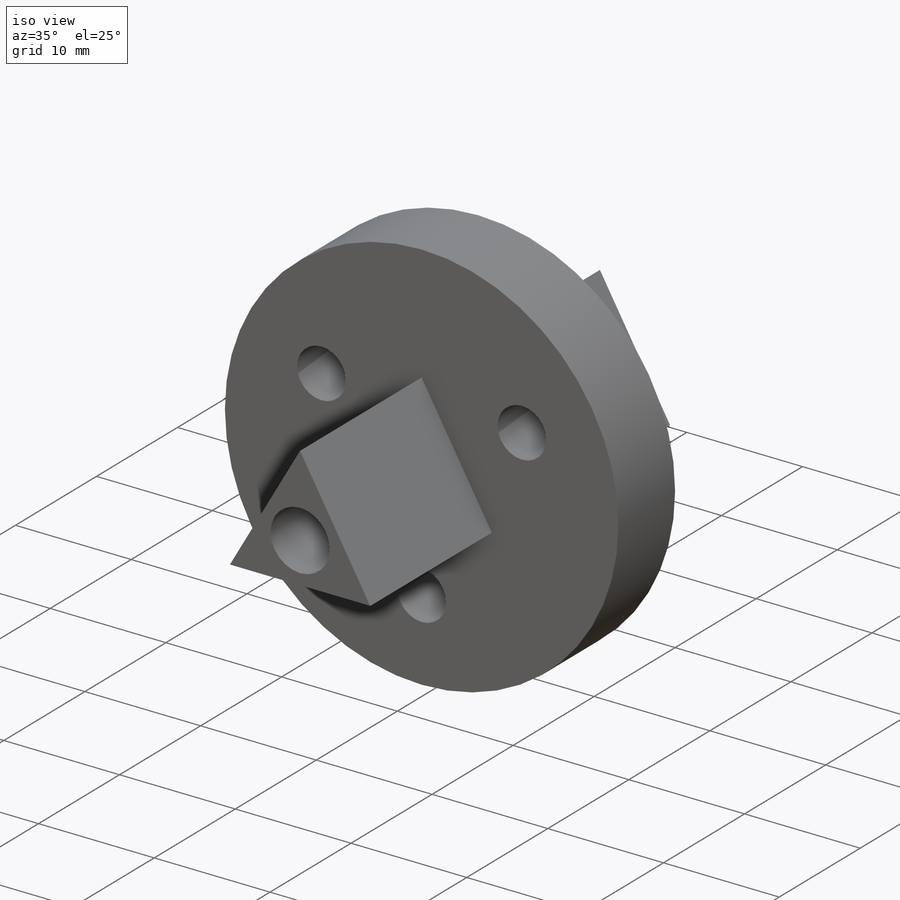
[diagram: iso view]
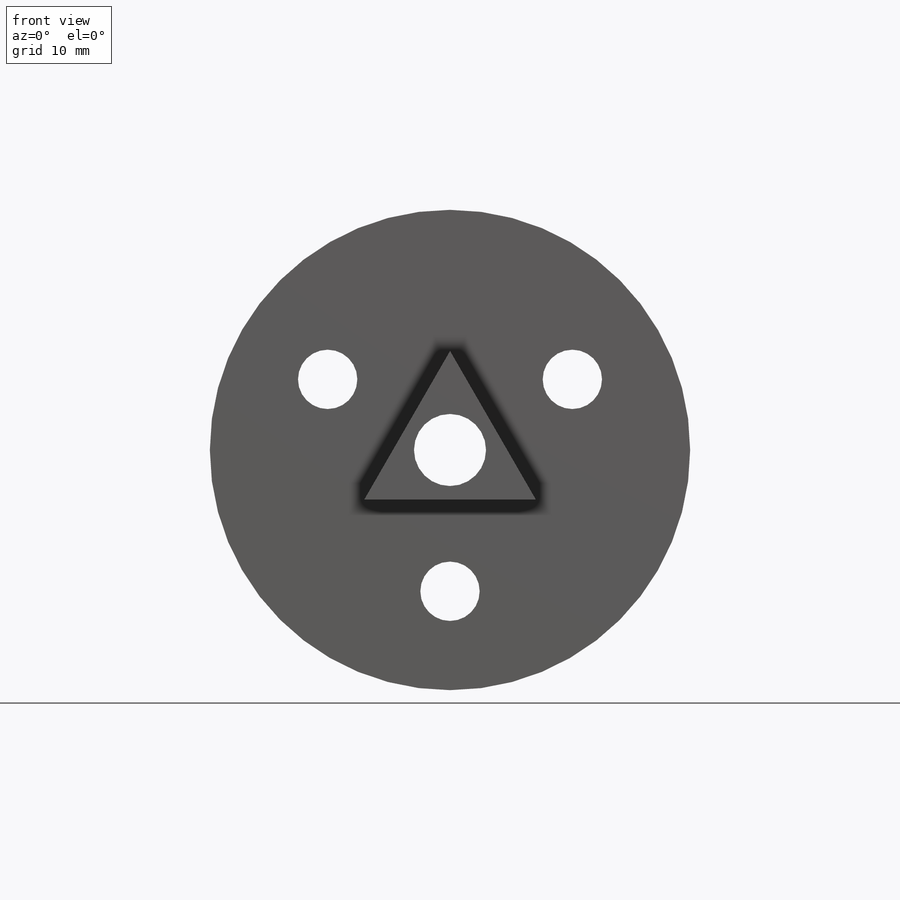
[diagram: front view]
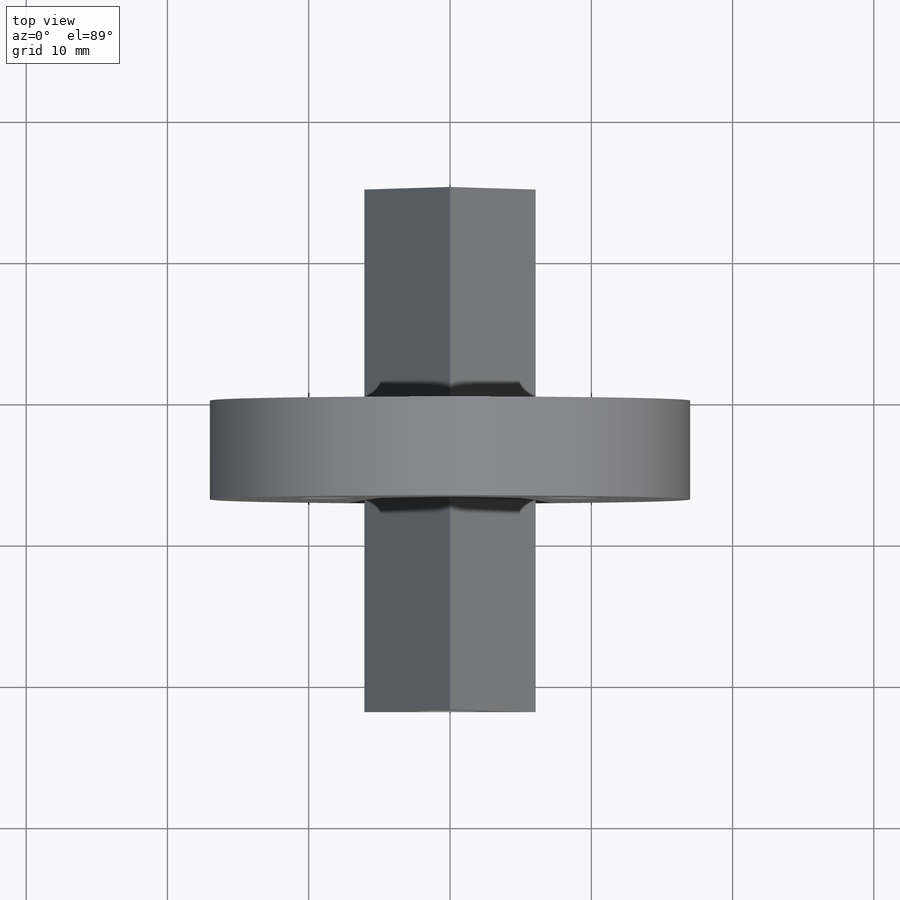
[diagram: top view]
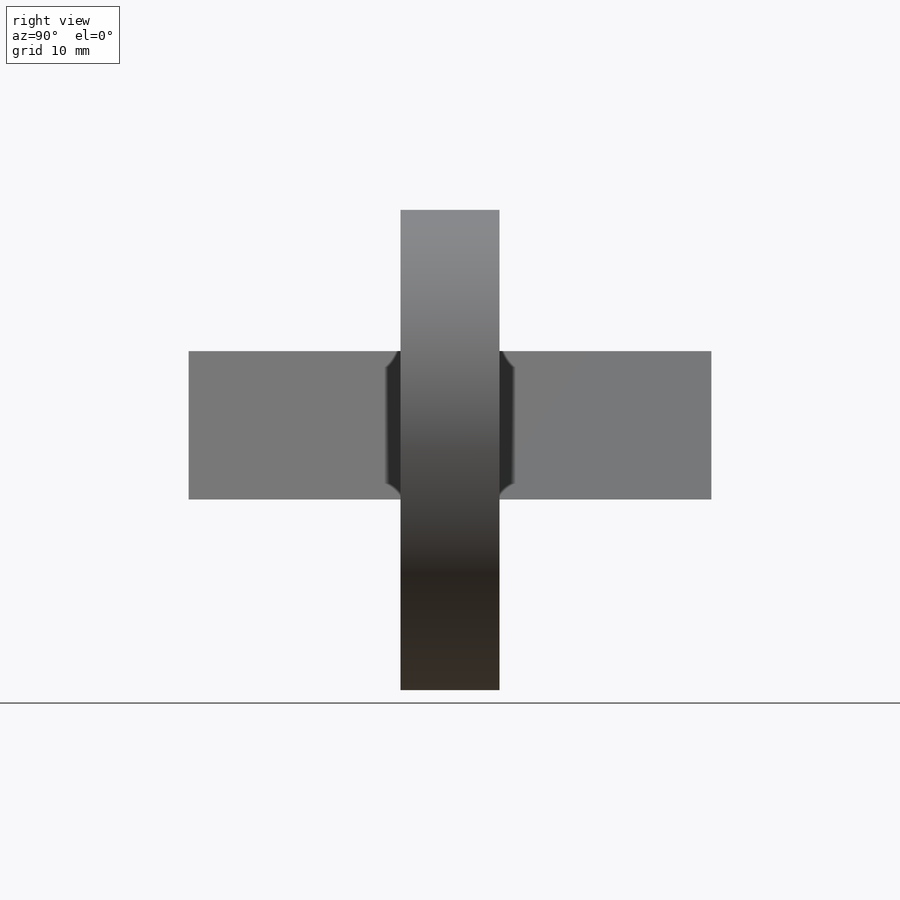
[diagram: right view]
SOLIDWORKS PART (.sldprt)
format: sldprt  version: not decoded by parser v0  size: 161,792 bytes
history: native  units: mm
features: sketch x3, extrude x2, material x1, cut_extrude x1 (+13 scaffold rows collapsed)
feature tree (20):
  scaffold x13  (default folders/planes/origin — collapsed)
  material  "Material <not specified>"
  sketch  "Sketch3"  dims[c1.D1=34.0mm c1.D4=4.2mm c1.D2=35.0mm c2.D2=120.0deg c2.D3=35.0mm c3.D3=120.0deg c3.D5=10.0mm c3.D6=3.0]
  extrude  "Boss-Extrude1"  Depth=7mm
  sketch  "Sketch4"  dims[c1.D1=5.1mm c1.D3=7.0mm c1.D4=7.0mm c2.D4=120.0deg c2.D5=~7.429774mm c3.D5=120.0deg c3.D6=7.0mm c3.D7=7.0mm c3.D2=1.0mm]
  extrude  "Boss-Extrude2"  Depth=15mm
  sketch  "Sketch9"  dims[D1=2.4mm]
  cut_extrude  "Cut-Extrude1"  [1 undecoded]
decode coverage: 5 of 6 modeling features carry decoded parameters
note: ~ marks probable driven/reference dimensions
note: 1 parameter value undecoded
note: suppression state not decoded; provenance and decode notes live in map.json
